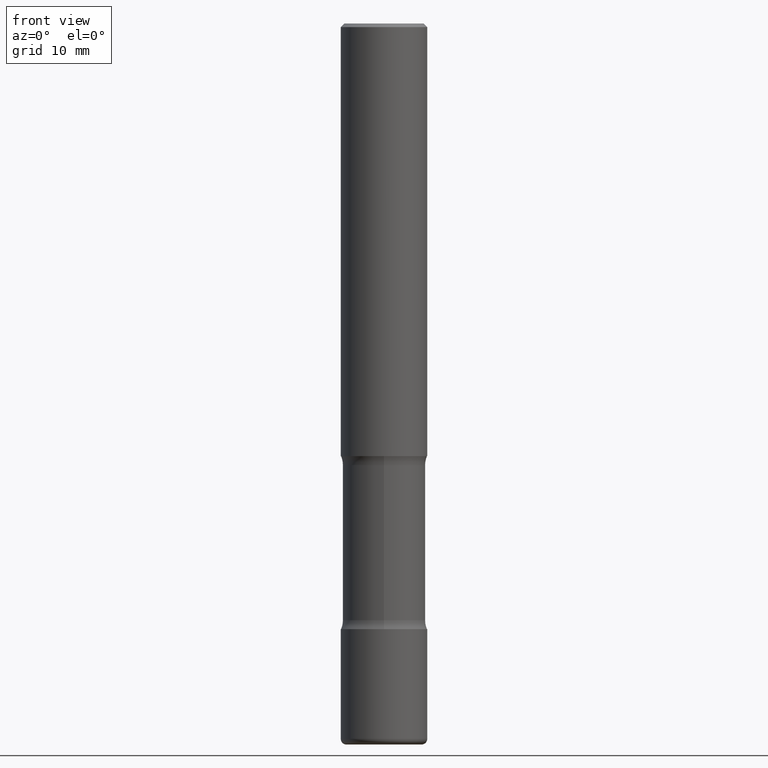
[diagram: clean part render]
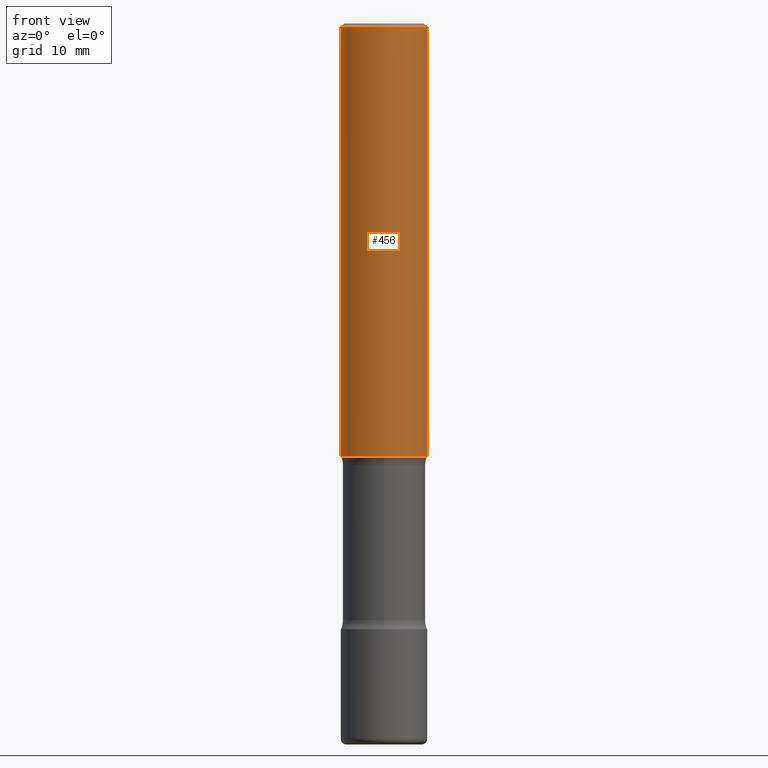
[diagram: same view with one face highlighted and labeled with its STEP entity id]
A machine part, front view. The second image highlights one B-rep face of the part: STEP entity #456.
In plain terms, the highlighted cylindrical surface (partial cylindrical patch) has radius 5.9995 mm, axis along (-0, 0, 1).
Its self-contained STEP definition (entity closure, byte-faithful):
#19 = DIRECTION ( 'NONE',  ( 1.000000000000000000, -6.982962677686268288E-15, 0.000000000000000000 ) ) ;
#31 = DIRECTION ( 'NONE',  ( -2.445468806185136597E-29, 3.491481338843145583E-15, 1.000000000000000000 ) ) ;
#37 = VECTOR ( 'NONE', #380, 39.37007874015748143 ) ;
#40 = CARTESIAN_POINT ( 'NONE',  ( 0.2361999999999999378, -1.690279253850498377E-15, -0.02000000000000006981 ) ) ;
#72 = ORIENTED_EDGE ( 'NONE', *, *, #414, .T. ) ;
#73 = DIRECTION ( 'NONE',  ( -2.445468806185136597E-29, 3.491481338843145583E-15, 1.000000000000000000 ) ) ;
#82 = LINE ( 'NONE', #251, #37 ) ;
#89 = VERTEX_POINT ( 'NONE', #40 ) ;
#100 = CARTESIAN_POINT ( 'NONE',  ( 0.000000000000000000, 0.000000000000000000, 0.000000000000000000 ) ) ;
#115 = VECTOR ( 'NONE', #135, 39.37007874015748143 ) ;
#135 = DIRECTION ( 'NONE',  ( -2.445468806185136877E-29, 3.491481338843145188E-15, 1.000000000000000000 ) ) ;
#180 = DIRECTION ( 'NONE',  ( 1.000000000000000000, -6.982962677686266711E-15, 4.876176775795935793E-29 ) ) ;
#185 = EDGE_CURVE ( 'NONE', #420, #89, #82, .T. ) ;
#190 = EDGE_CURVE ( 'NONE', #278, #89, #399, .T. ) ;
#206 = DIRECTION ( 'NONE',  ( 1.000000000000000000, -6.982962677686266711E-15, 0.000000000000000000 ) ) ;
#210 = AXIS2_PLACEMENT_3D ( 'NONE', #100, #298, #180 ) ;
#212 = CARTESIAN_POINT ( 'NONE',  ( 4.890937612370289799E-31, -6.982962677686315028E-17, -0.02000000000000006981 ) ) ;
#232 = EDGE_CURVE ( 'NONE', #388, #278, #385, .T. ) ;
#233 = CARTESIAN_POINT ( 'NONE',  ( -0.2361999999999999378, 1.579546157692632635E-15, -0.02000000000000006981 ) ) ;
#240 = ORIENTED_EDGE ( 'NONE', *, *, #190, .F. ) ;
#251 = CARTESIAN_POINT ( 'NONE',  ( 0.2362000000000000766, -1.649375784469496722E-15, 1.151752954443000368E-29 ) ) ;
#255 = CIRCLE ( 'NONE', #525, 0.2362000000000001598 ) ;
#268 = EDGE_LOOP ( 'NONE', ( #486, #72, #402, #240 ) ) ;
#271 = CYLINDRICAL_SURFACE ( 'NONE', #210, 0.2362000000000000766 ) ;
#278 = VERTEX_POINT ( 'NONE', #233 ) ;
#282 = CARTESIAN_POINT ( 'NONE',  ( 5.776686413970529753E-29, -8.247577218615279626E-15, -2.362200000000000077 ) ) ;
#298 = DIRECTION ( 'NONE',  ( -2.445468806185136597E-29, 3.491481338843145583E-15, 1.000000000000000000 ) ) ;
#356 = AXIS2_PLACEMENT_3D ( 'NONE', #212, #31, #206 ) ;
#365 = CARTESIAN_POINT ( 'NONE',  ( 0.2362000000000001598, -9.896953003084776152E-15, -2.362200000000000077 ) ) ;
#380 = DIRECTION ( 'NONE',  ( -2.445468806185136877E-29, 3.491481338843145188E-15, 1.000000000000000000 ) ) ;
#385 = LINE ( 'NONE', #429, #115 ) ;
#388 = VERTEX_POINT ( 'NONE', #449 ) ;
#399 = CIRCLE ( 'NONE', #356, 0.2361999999999999378 ) ;
#402 = ORIENTED_EDGE ( 'NONE', *, *, #185, .T. ) ;
#414 = EDGE_CURVE ( 'NONE', #388, #420, #255, .T. ) ;
#420 = VERTEX_POINT ( 'NONE', #365 ) ;
#429 = CARTESIAN_POINT ( 'NONE',  ( -0.2362000000000000766, 1.678301941865357183E-15, -1.161852468318209177E-29 ) ) ;
#449 = CARTESIAN_POINT ( 'NONE',  ( -0.2362000000000001598, -2.480401480830711124E-15, -2.362200000000000077 ) ) ;
#456 = ADVANCED_FACE ( 'NONE', ( #487 ), #271, .T. ) ;
#486 = ORIENTED_EDGE ( 'NONE', *, *, #232, .F. ) ;
#487 = FACE_OUTER_BOUND ( 'NONE', #268, .T. ) ;
#525 = AXIS2_PLACEMENT_3D ( 'NONE', #282, #73, #19 ) ;